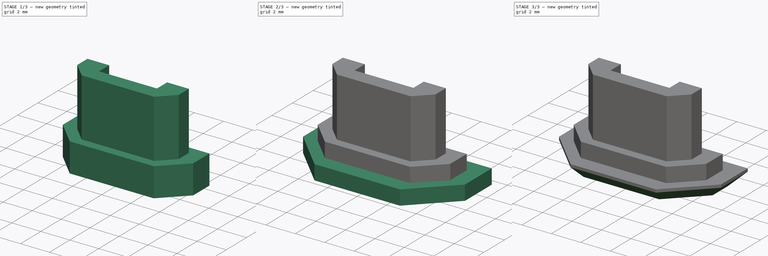
[diagram: build sequence overview — one tinted view per stage of 3, left to right]
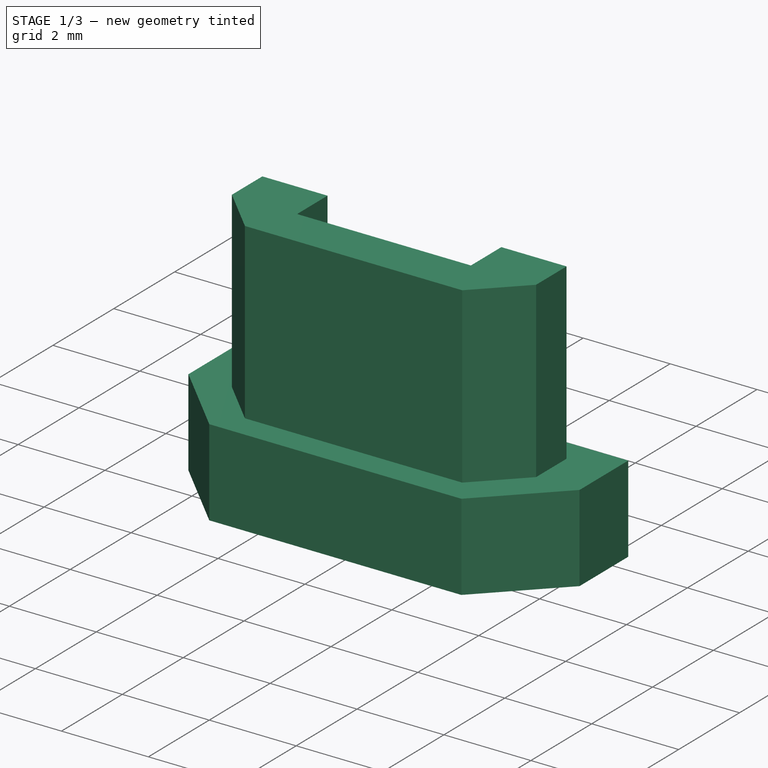
[diagram: stage 1 of 3 — iso view after this stage's code; geometry added in this stage tinted green]
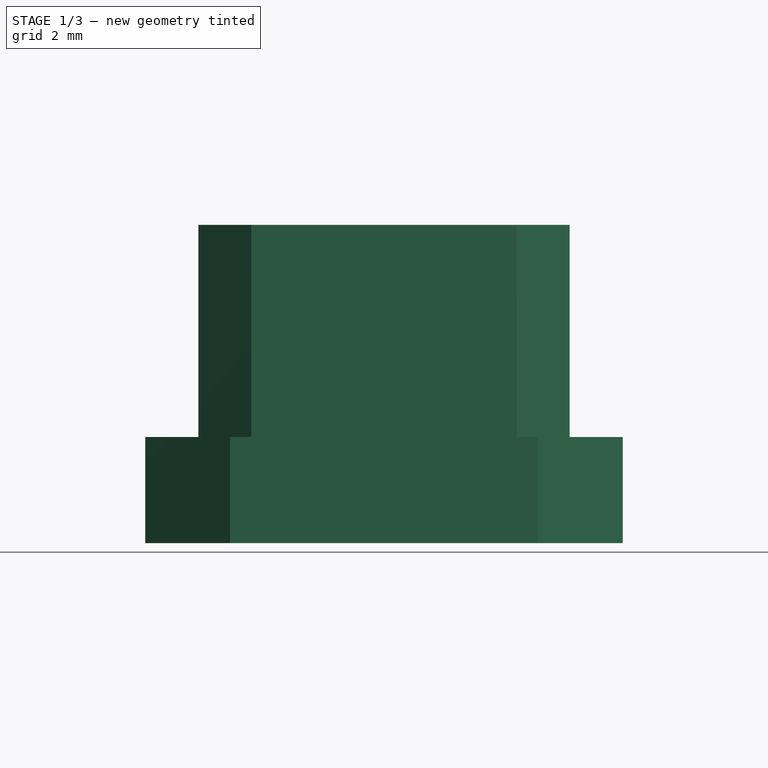
[diagram: stage 1 of 3 — front view after this stage's code; geometry added in this stage tinted green]
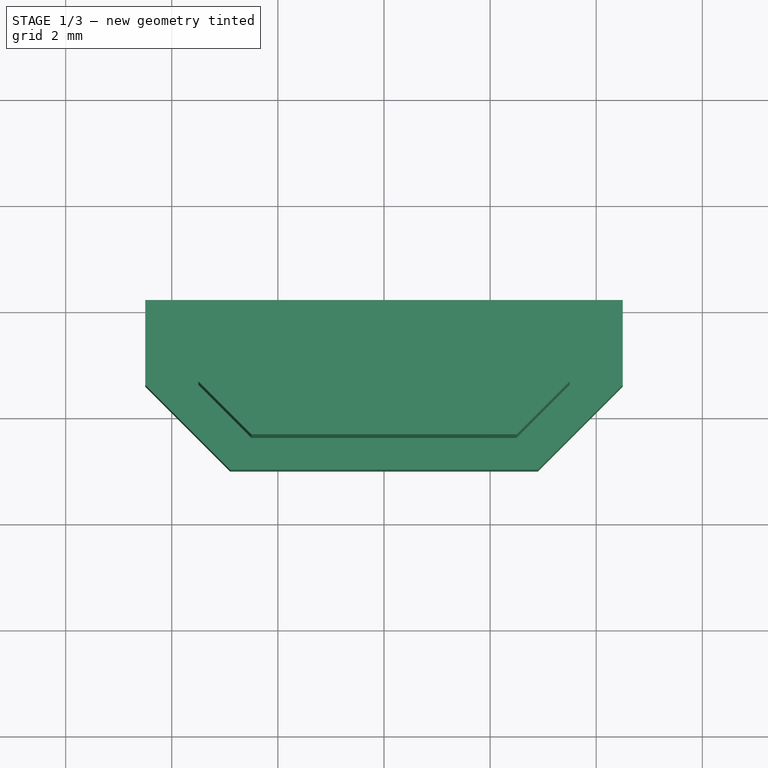
[diagram: stage 1 of 3 — top view after this stage's code; geometry added in this stage tinted green]
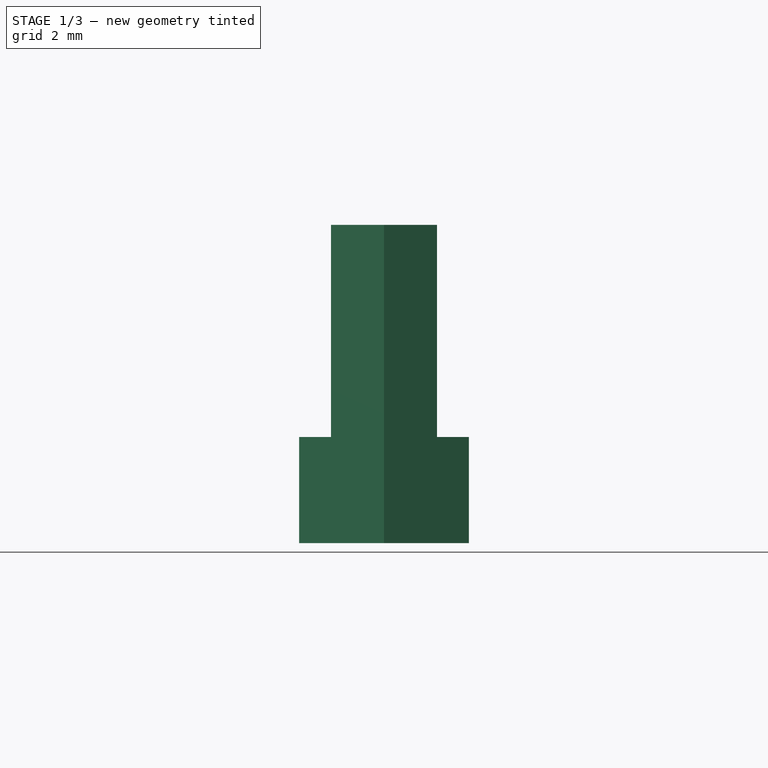
[diagram: stage 1 of 3 — right view after this stage's code; geometry added in this stage tinted green]
FCSTD DOCUMENT  (FreeCAD 0.20R29410 (Git))
Label: minidexed case USB plug
License: All rights reserved
LicenseURL: http://en.wikipedia.org/wiki/All_rights_reserved
objects: Sketcher::SketchObject×3, Part::Extrusion×3, PartDesign::Body×1, Part::MultiFuse×1, Part::Chamfer×1
note: 9 computed .brp shape members not serialized (recipe doc carries the construction recipe); baked Part::Feature solids carry a one-line shape summary decoded from their .brp

FEATURE [Part::Extrusion] Extrude001
  Base = -> Sketch001
  Dir = (0,0,1)
  DirMode = 2
  FaceMakerClass = Part::FaceMakerBullseye
  LengthFwd = 2
  LengthRev = 0
  Solid = true
  Symmetric = false
FEATURE [Part::Extrusion] Extrude002
  Base = -> Sketch002
  Dir = (0,0,1)
  DirMode = 2
  FaceMakerClass = Part::FaceMakerBullseye
  LengthFwd = 6
  LengthRev = 0
  Solid = true
  Symmetric = false
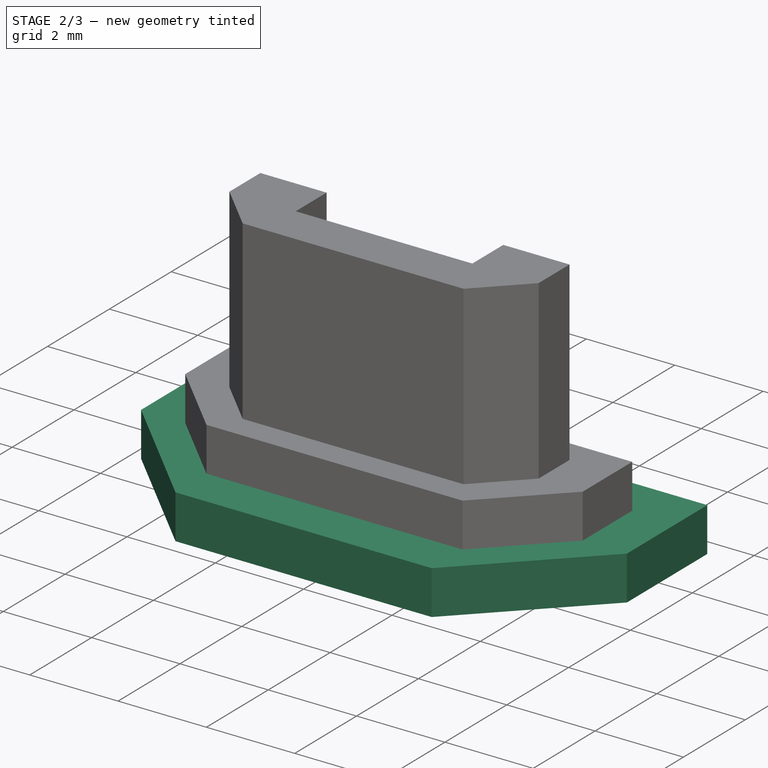
[diagram: stage 2 of 3 — iso view after this stage's code; geometry added in this stage tinted green]
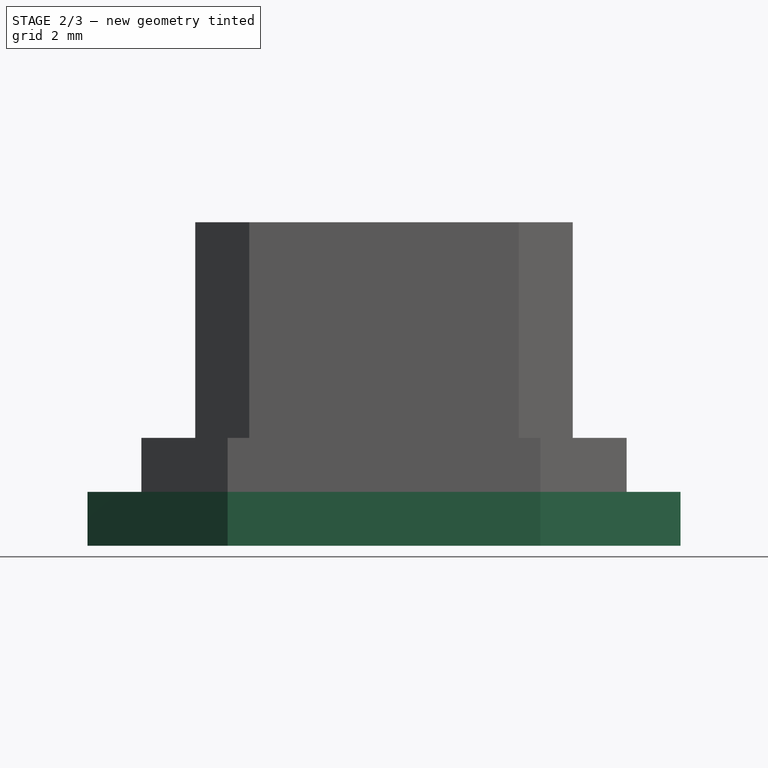
[diagram: stage 2 of 3 — front view after this stage's code; geometry added in this stage tinted green]
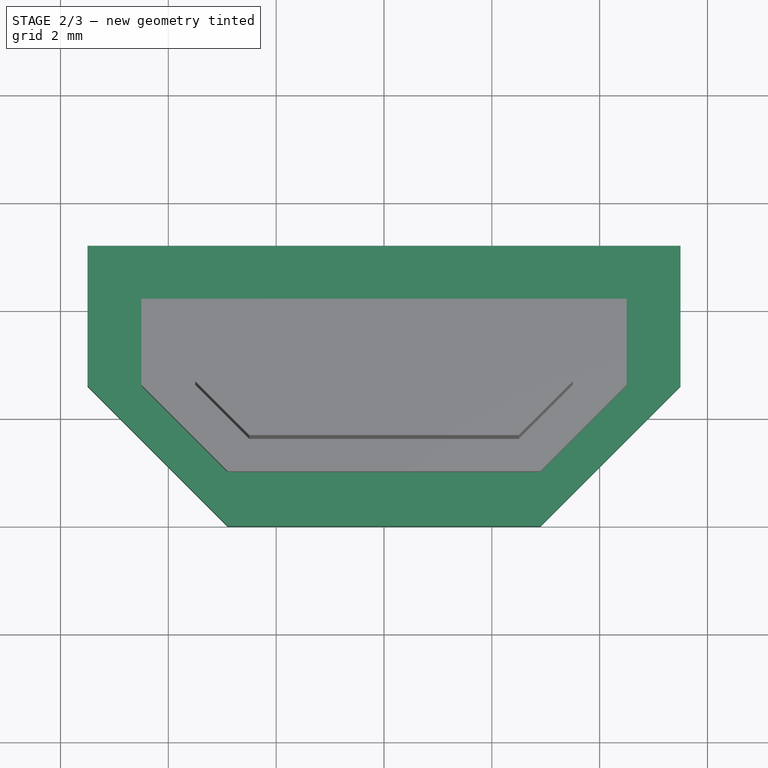
[diagram: stage 2 of 3 — top view after this stage's code; geometry added in this stage tinted green]
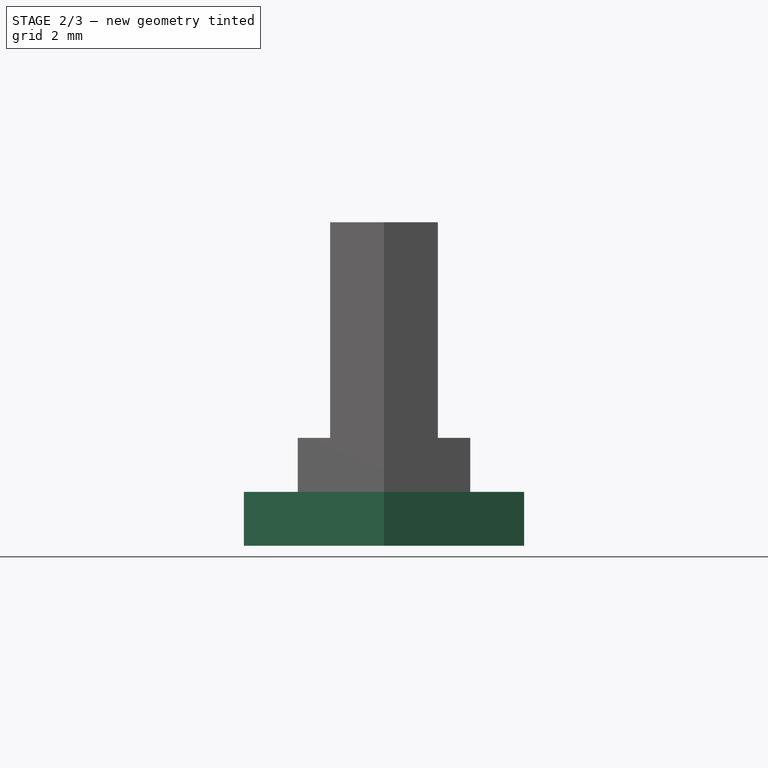
[diagram: stage 2 of 3 — right view after this stage's code; geometry added in this stage tinted green]
FEATURE [Sketcher::SketchObject] Sketch
  FullyConstrained = true
  MapMode = 5
  Support = -> [XY_Plane]
  sketch-geometry (6):
    g0: LineSegment StartX=-5.5 StartY=5.2 StartZ=0 EndX=5.5 EndY=5.2 EndZ=0
    g1: LineSegment StartX=5.5 StartY=5.2 StartZ=0 EndX=5.5 EndY=2.6 EndZ=0
    g2: LineSegment StartX=5.5 StartY=2.6 StartZ=0 EndX=2.9 EndY=0 EndZ=0
    g3: LineSegment StartX=2.9 StartY=0 StartZ=0 EndX=-2.9 EndY=0 EndZ=0
    g4: LineSegment StartX=-2.9 StartY=0 StartZ=0 EndX=-5.5 EndY=2.6 EndZ=0
    g5: LineSegment StartX=-5.5 StartY=2.6 StartZ=0 EndX=-5.5 EndY=5.2 EndZ=0
  constraints (17):
    c: Coincident(g0,g1)
    c: Coincident(g1,g2)
    c: Coincident(g2,g3)
    c: Coincident(g3,g4)
    c: Coincident(g4,g5)
    c: Coincident(g5,g0)
    c: Horizontal(g3)
    c: Vertical(g1)
    c: Vertical(g5)
    c: Angle(g2,g3) = 2.35619
    c: Equal(g4,g2)
    c: Angle(g3,g4) = 2.35619
    c: Symmetric(g0,g0,g-2)
    c: DistanceX(g0,g0) = 11
    c: DistanceY(g1,g1) = 2.6
    c: DistanceY(g2,g0) = 5.2
    c: PointOnObject(g-1,g3)
FEATURE [Sketcher::SketchObject] Sketch001
  FullyConstrained = true
  MapMode = 5
  Support = -> [XY_Plane]
  sketch-geometry (6):
    g0: LineSegment StartX=-4.5 StartY=4.2 StartZ=0 EndX=4.5 EndY=4.2 EndZ=0
    g1: LineSegment StartX=4.5 StartY=4.2 StartZ=0 EndX=4.5 EndY=2.6 EndZ=0
    g2: LineSegment StartX=4.5 StartY=2.6 StartZ=0 EndX=2.9 EndY=1 EndZ=0
    g3: LineSegment StartX=2.9 StartY=1 StartZ=0 EndX=-2.9 EndY=1 EndZ=0
    g4: LineSegment StartX=-2.9 StartY=1 StartZ=0 EndX=-4.5 EndY=2.6 EndZ=0
    g5: LineSegment StartX=-4.5 StartY=2.6 StartZ=0 EndX=-4.5 EndY=4.2 EndZ=0
  constraints (17):
    c: Coincident(g0,g1)
    c: Coincident(g1,g2)
    c: Coincident(g2,g3)
    c: Coincident(g3,g4)
    c: Coincident(g4,g5)
    c: Coincident(g5,g0)
    c: Horizontal(g3)
    c: Vertical(g1)
    c: Vertical(g5)
    c: Angle(g2,g3) = 2.35619
    c: Equal(g4,g2)
    c: Angle(g3,g4) = 2.35619
    c: Symmetric(g0,g0,g-2)
    c: DistanceX(g0,g0) = 9
    c: DistanceY(g1,g1) = 1.6
    c: DistanceY(g2,g0) = 3.2
    c: DistanceY(g-1,g3) = 1
FEATURE [Sketcher::SketchObject] Sketch002
  FullyConstrained = true
  MapMode = 5
  Support = -> [XY_Plane]
  sketch-geometry (10):
    g0: LineSegment StartX=-3.5 StartY=3.6 StartZ=0 EndX=-2 EndY=3.6 EndZ=0
    g1: LineSegment StartX=-2 StartY=3.6 StartZ=0 EndX=-2 EndY=2.6 EndZ=0
    g2: LineSegment StartX=-2 StartY=2.6 StartZ=0 EndX=2 EndY=2.6 EndZ=0
    g3: LineSegment StartX=2 StartY=2.6 StartZ=0 EndX=2 EndY=3.6 EndZ=0
    g4: LineSegment StartX=2 StartY=3.6 StartZ=0 EndX=3.5 EndY=3.6 EndZ=0
    g5: LineSegment StartX=3.5 StartY=3.6 StartZ=0 EndX=3.5 EndY=2.6 EndZ=0
    g6: LineSegment StartX=3.5 StartY=2.6 StartZ=0 EndX=2.5 EndY=1.6 EndZ=0
    g7: LineSegment StartX=2.5 StartY=1.6 StartZ=0 EndX=-2.5 EndY=1.6 EndZ=0
    g8: LineSegment StartX=-2.5 StartY=1.6 StartZ=0 EndX=-3.5 EndY=2.6 EndZ=0
    g9: LineSegment StartX=-3.5 StartY=2.6 StartZ=0 EndX=-3.5 EndY=3.6 EndZ=0
  constraints (25):
    c: Horizontal(g0)
    c: Coincident(g0,g1)
    c: Vertical(g1)
    c: Coincident(g1,g2)
    c: Coincident(g2,g3)
    c: Coincident(g3,g4)
    c: Coincident(g4,g5)
    c: Vertical(g5)
    c: Coincident(g5,g6)
    c: Coincident(g6,g7)
    c: Coincident(g7,g8)
    c: Coincident(g8,g9)
    c: Coincident(g9,g0)
    c: Symmetric(g0,g4,g-2)
    c: Symmetric(g0,g3,g-2)
    c: Symmetric(g1,g2,g-2)
    c: Symmetric(g8,g5,g-2)
    c: Symmetric(g7,g6,g-2)
    c: DistanceX(g0,g4) = 7
    c: DistanceX(g0,g3) = 4
    c: DistanceY(g2,g3) = 1
    c: DistanceY(g5,g4) = 1
    c: DistanceY(g6,g4) = 2
    c: Angle(g6,g7) = 2.35619
    c: DistanceY(g-1,g7) = 1.6
FEATURE [PartDesign::Body] Body
  Group = -> [Sketch,Sketch001,Sketch002]
  Origin = -> Origin
FEATURE [Part::Extrusion] Extrude
  Base = -> Sketch
  Dir = (0,0,1)
  DirMode = 2
  FaceMakerClass = Part::FaceMakerBullseye
  LengthFwd = 1
  LengthRev = 0
  Solid = true
  Symmetric = false
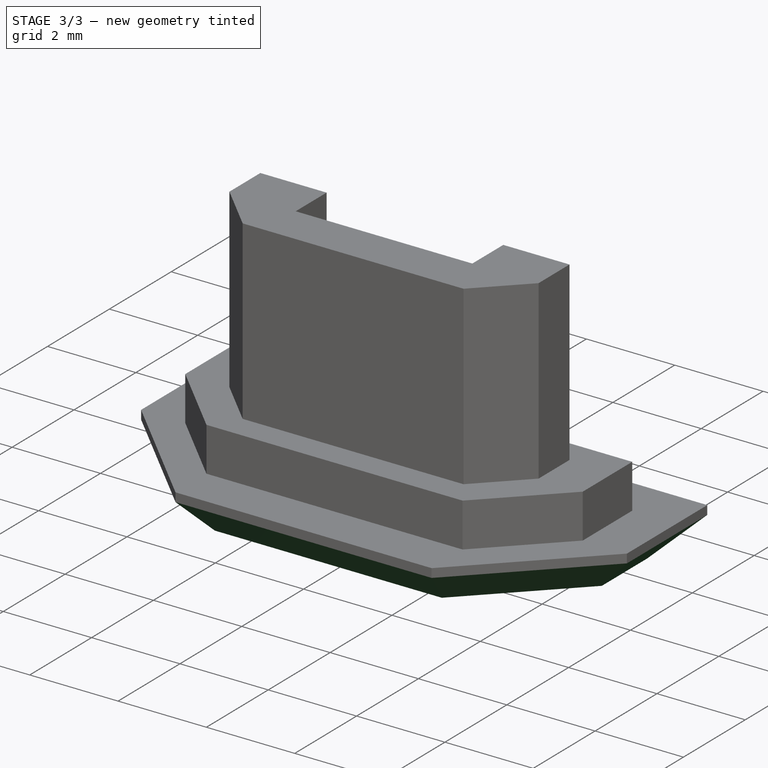
[diagram: stage 3 of 3 — iso view after this stage's code; geometry added in this stage tinted green]
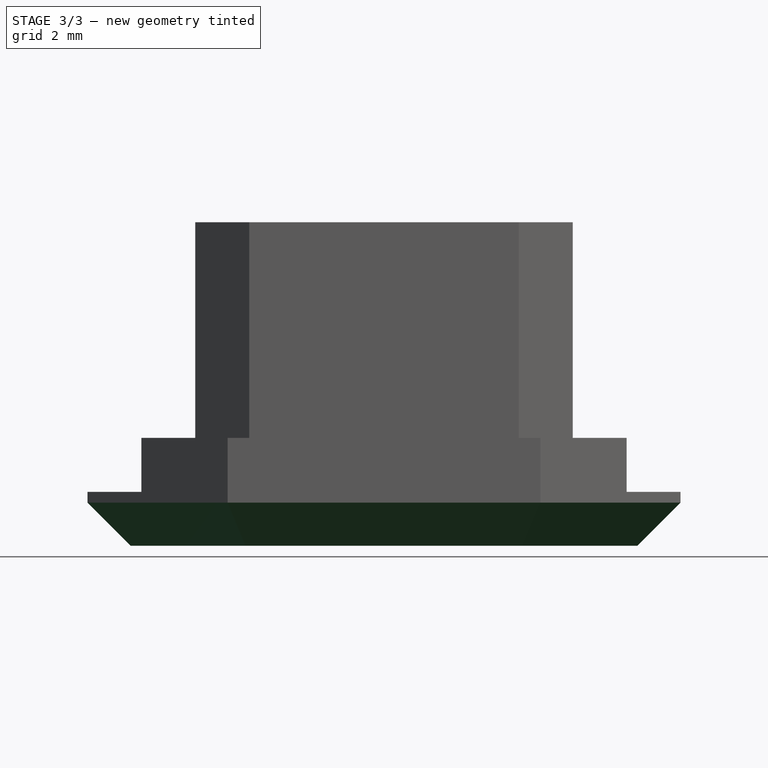
[diagram: stage 3 of 3 — front view after this stage's code; geometry added in this stage tinted green]
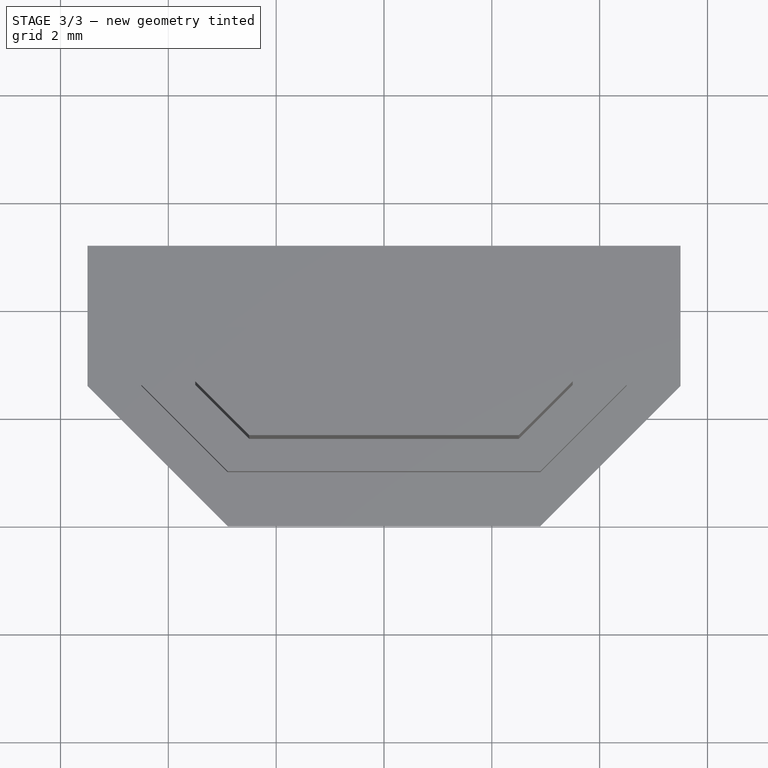
[diagram: stage 3 of 3 — top view after this stage's code; geometry added in this stage tinted green]
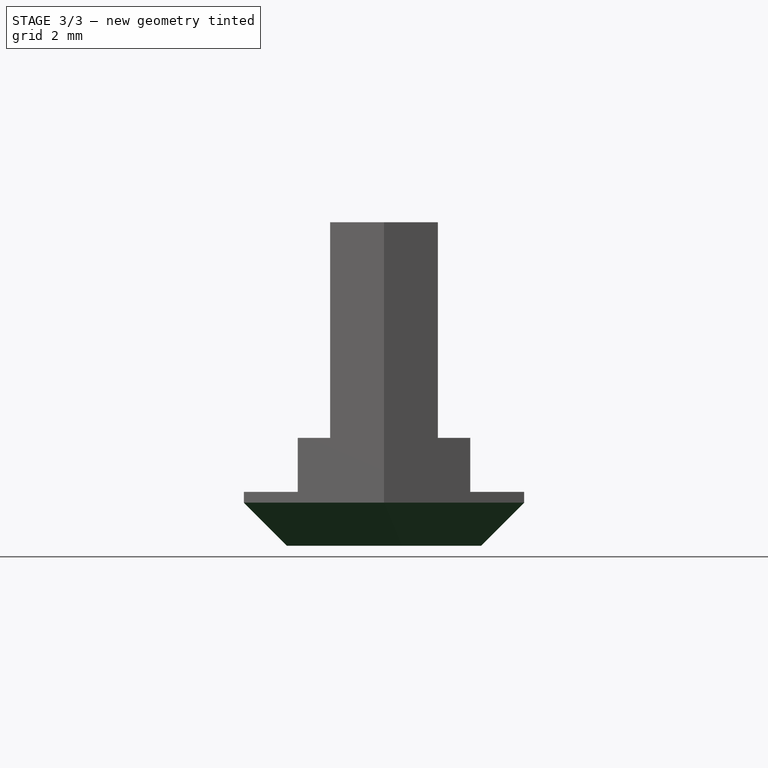
[diagram: stage 3 of 3 — right view after this stage's code; geometry added in this stage tinted green]
FEATURE [Part::MultiFuse] Fusion
  Shapes = -> [Extrude,Extrude001,Extrude002]
FEATURE [Part::Chamfer] Chamfer
  Base = -> Fusion
  Edges = 6 edges r=0.8: [Edge3,Edge6,Edge9,Edge11,Edge12,Edge13]
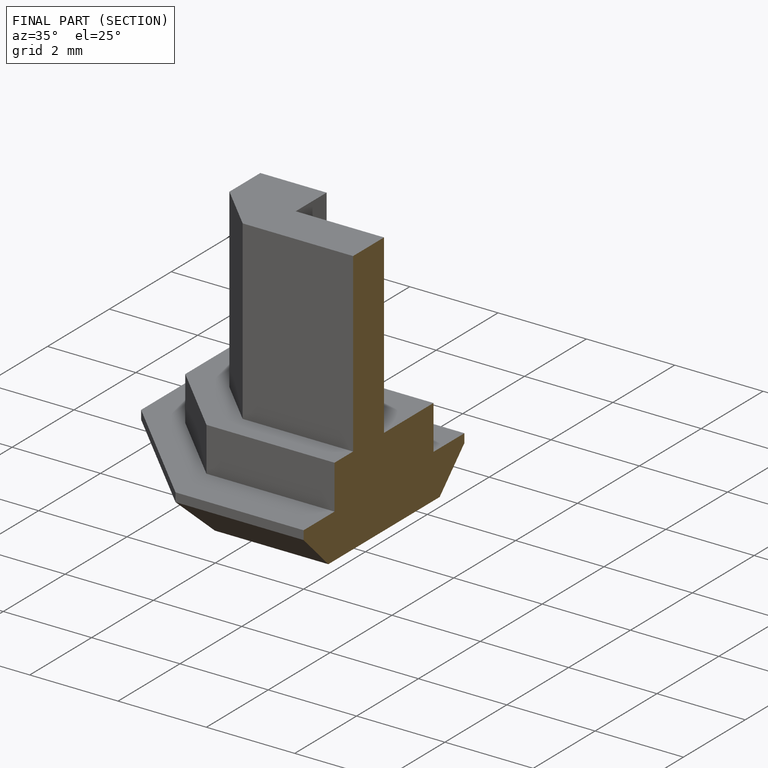
[diagram: finished part — half-section view (interior)]
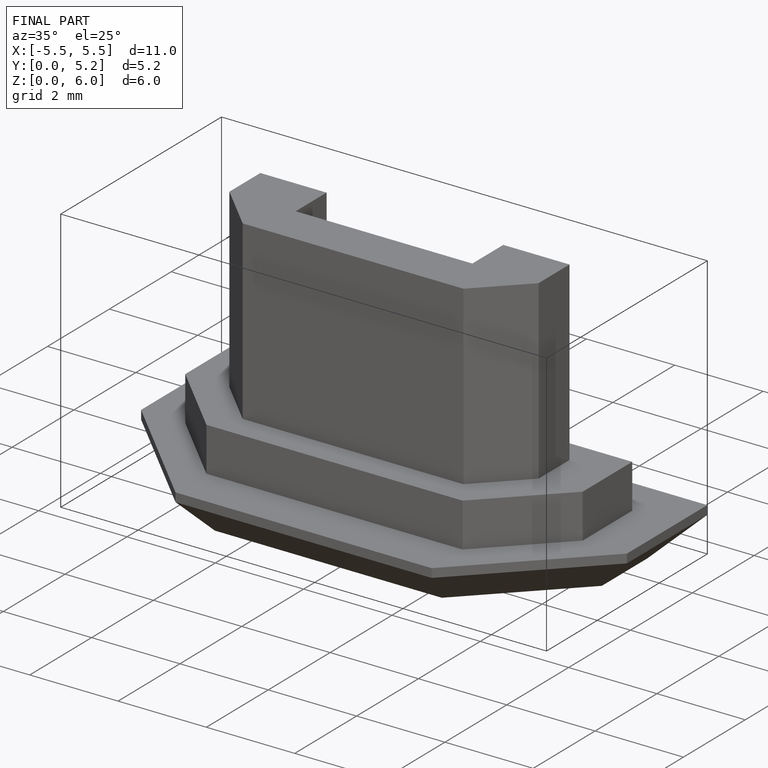
[diagram: finished part — iso view with bounding-box wireframe]
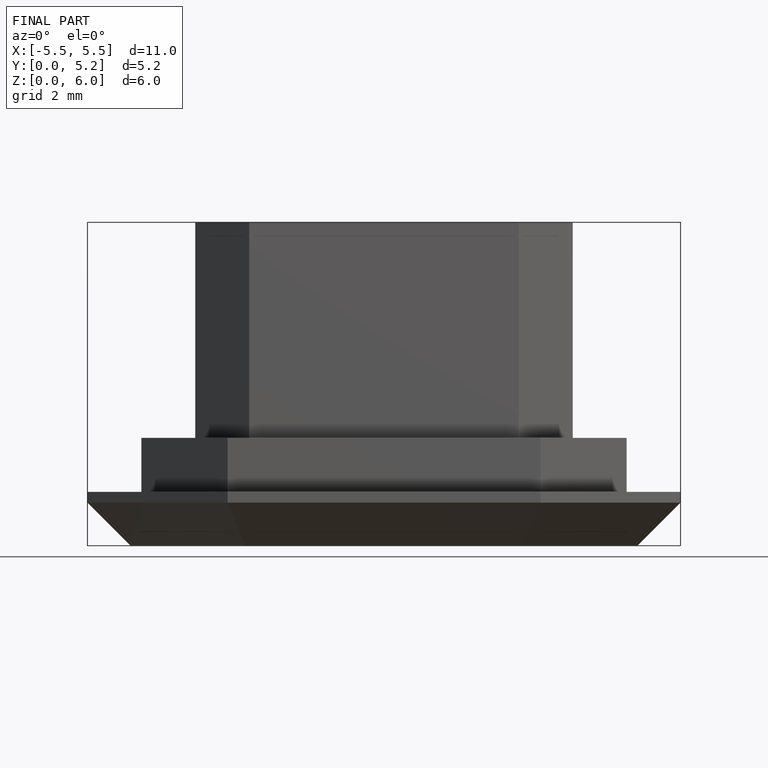
[diagram: finished part — front view with bounding-box wireframe]
